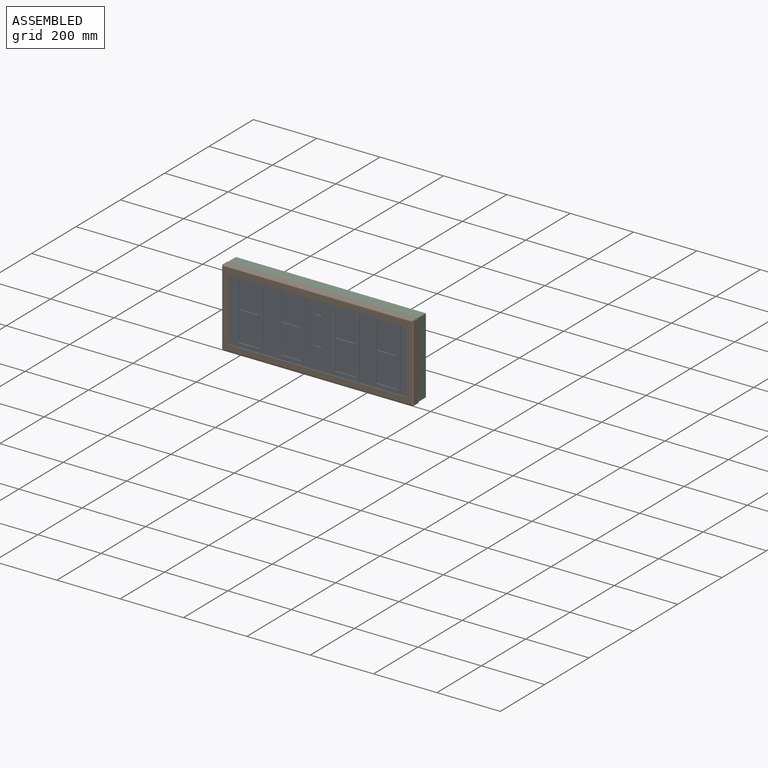
[diagram: assembled view]
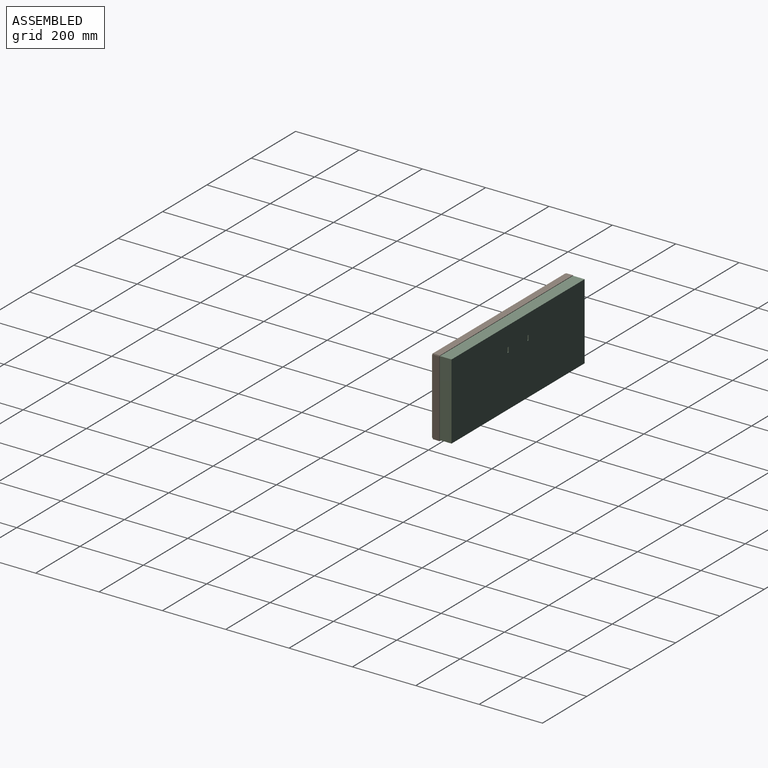
[diagram: assembled view, second angle]
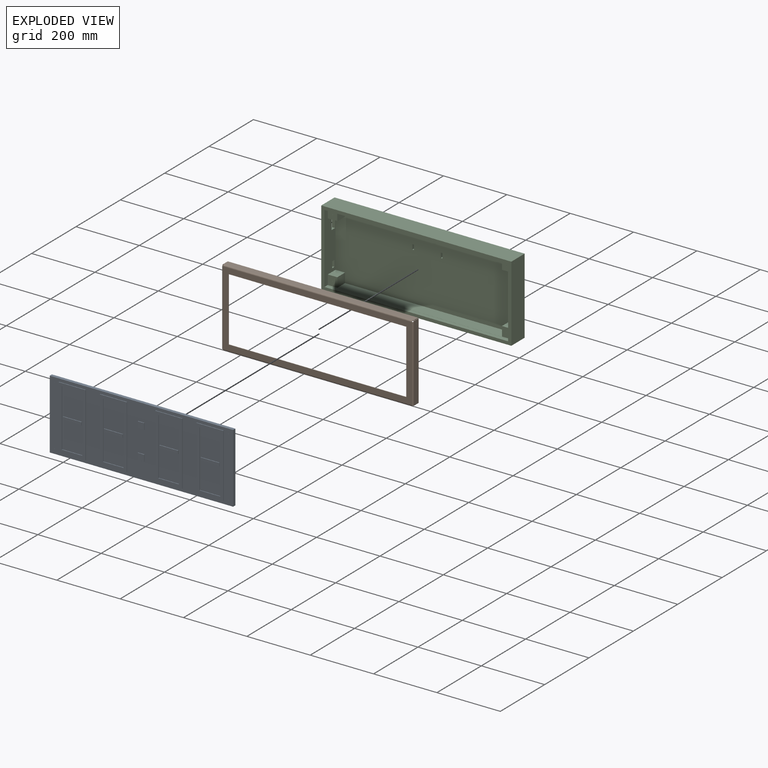
[diagram: exploded view]
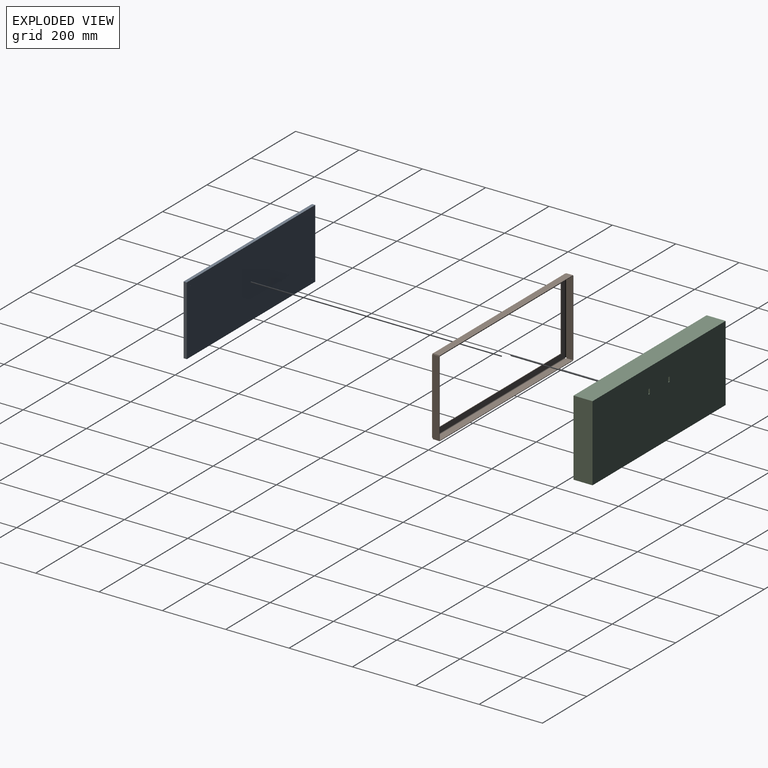
[diagram: exploded view, second angle]
ASSEMBLY  parts=3 mates=2
PART A: 80 faces, bbox 579x12x219 mm
  f0: plane 579x10mm, normal (0,0,1), area 5790mm2, adj f1,f7,f8,f9
  f1: plane 219x10mm, normal (-1,0,0), area 2190mm2, adj f0,f2,f8,f9
  f2: plane 579x10mm, normal (0,0,-1), area 5790mm2, adj f1,f7,f8,f9
  f3: cylinder r=0.5mm len=10mm, axis (0,1,0), area 31.4mm2, adj f8,f9
  f4: cylinder r=0.5mm len=10mm, axis (0,1,0), area 31.4mm2, adj f8,f9
  f5: cylinder r=0.5mm len=10mm, axis (0,1,0), area 31.4mm2, adj f8,f9
  f6: cylinder r=0.5mm len=10mm, axis (0,1,0), area 31.4mm2, adj f8,f9
  f7: plane 219x10mm, normal (1,0,0), area 2190mm2, adj f0,f2,f8,f9
  f8: plane 579x219mm, normal (0,-1,0), area 57997.9mm2, adj f0,f1,f2,f3,f4,f5,f6,f7
  f9: plane 579x219mm, normal (0,1,0), area 126797.9mm2, adj f0,f1,f2,f3,f4,f5,f6,f7
  f10: plane 85x2mm, normal (0,0,1), area 170mm2, adj f8,f11,f17,f18
  f11: plane 200x2mm, normal (-1,0,0), area 400mm2, adj f8,f10,f12,f18
  f12: plane 85x2mm, normal (0,0,-1), area 170mm2, adj f8,f11,f17,f18
  f13: plane 65x2mm, normal (0,0,-1), area 130mm2, adj f14,f16,f18,f19
  f14: plane 180x2mm, normal (-1,0,0), area 360mm2, adj f13,f15,f18,f19
  f15: plane 65x2mm, normal (0,0,1), area 130mm2, adj f14,f16,f18,f19
  f16: plane 180x2mm, normal (1,0,0), area 360mm2, adj f13,f15,f18,f19
  f17: plane 200x2mm, normal (1,0,0), area 400mm2, adj f8,f10,f12,f18
  f18: plane 200x85mm, normal (0,-1,0), area 5300mm2, adj f10,f11,f12,f13,f14,f15,f16,f17
  f19: plane 180x65mm, normal (0,-1,0), area 11110mm2, adj f13,f14,f15,f16,f20,f21,f22,f23
  f20: plane 59x2mm, normal (0,0,1), area 118mm2, adj f19,f21,f23,f24
  f21: plane 10x2mm, normal (-1,0,0), area 20mm2, adj f19,f20,f22,f24
  f22: plane 59x2mm, normal (0,0,-1), area 118mm2, adj f19,f21,f23,f24
  f23: plane 10x2mm, normal (1,0,0), area 20mm2, adj f19,f20,f22,f24
  f24: plane 59x10mm, normal (0,-1,0), area 590mm2, adj f20,f21,f22,f23
  f25: plane 85x2mm, normal (0,0,1), area 170mm2, adj f8,f26,f32,f33
  f26: plane 200x2mm, normal (-1,0,0), area 400mm2, adj f8,f25,f27,f33
  f27: plane 85x2mm, normal (0,0,-1), area 170mm2, adj f8,f26,f32,f33
  f28: plane 65x2mm, normal (0,0,-1), area 130mm2, adj f29,f31,f33,f34
  f29: plane 180x2mm, normal (-1,0,0), area 360mm2, adj f28,f30,f33,f34
  f30: plane 65x2mm, normal (0,0,1), area 130mm2, adj f29,f31,f33,f34
  f31: plane 180x2mm, normal (1,0,0), area 360mm2, adj f28,f30,f33,f34
  f32: plane 200x2mm, normal (1,0,0), area 400mm2, adj f8,f25,f27,f33
  f33: plane 200x85mm, normal (0,-1,0), area 5300mm2, adj f25,f26,f27,f28,f29,f30,f31,f32
  f34: plane 180x65mm, normal (0,-1,0), area 11110mm2, adj f28,f29,f30,f31,f35,f36,f37,f38
  f35: plane 59x2mm, normal (0,0,1), area 118mm2, adj f34,f36,f38,f39
  f36: plane 10x2mm, normal (-1,0,0), area 20mm2, adj f34,f35,f37,f39
  f37: plane 59x2mm, normal (0,0,-1), area 118mm2, adj f34,f36,f38,f39
  f38: plane 10x2mm, normal (1,0,0), area 20mm2, adj f34,f35,f37,f39
  f39: plane 59x10mm, normal (0,-1,0), area 590mm2, adj f35,f36,f37,f38
  f40: plane 85x2mm, normal (0,0,1), area 170mm2, adj f8,f41,f47,f48
  f41: plane 200x2mm, normal (-1,0,0), area 400mm2, adj f8,f40,f42,f48
  f42: plane 85x2mm, normal (0,0,-1), area 170mm2, adj f8,f41,f47,f48
  f43: plane 65x2mm, normal (0,0,-1), area 130mm2, adj f44,f46,f48,f49
  f44: plane 180x2mm, normal (-1,0,0), area 360mm2, adj f43,f45,f48,f49
  f45: plane 65x2mm, normal (0,0,1), area 130mm2, adj f44,f46,f48,f49
  f46: plane 180x2mm, normal (1,0,0), area 360mm2, adj f43,f45,f48,f49
  f47: plane 200x2mm, normal (1,0,0), area 400mm2, adj f8,f40,f42,f48
  f48: plane 200x85mm, normal (0,-1,0), area 5300mm2, adj f40,f41,f42,f43,f44,f45,f46,f47
  f49: plane 180x65mm, normal (0,-1,0), area 11110mm2, adj f43,f44,f45,f46,f50,f51,f52,f53
  f50: plane 59x2mm, normal (0,0,1), area 118mm2, adj f49,f51,f53,f54
  f51: plane 10x2mm, normal (-1,0,0), area 20mm2, adj f49,f50,f52,f54
  f52: plane 59x2mm, normal (0,0,-1), area 118mm2, adj f49,f51,f53,f54
  f53: plane 10x2mm, normal (1,0,0), area 20mm2, adj f49,f50,f52,f54
  f54: plane 59x10mm, normal (0,-1,0), area 590mm2, adj f50,f51,f52,f53
  f55: plane 85x2mm, normal (0,0,1), area 170mm2, adj f8,f56,f62,f63
  f56: plane 200x2mm, normal (-1,0,0), area 400mm2, adj f8,f55,f57,f63
  f57: plane 85x2mm, normal (0,0,-1), area 170mm2, adj f8,f56,f62,f63
  f58: plane 65x2mm, normal (0,0,-1), area 130mm2, adj f59,f61,f63,f64
  f59: plane 180x2mm, normal (-1,0,0), area 360mm2, adj f58,f60,f63,f64
  f60: plane 65x2mm, normal (0,0,1), area 130mm2, adj f59,f61,f63,f64
  f61: plane 180x2mm, normal (1,0,0), area 360mm2, adj f58,f60,f63,f64
  f62: plane 200x2mm, normal (1,0,0), area 400mm2, adj f8,f55,f57,f63
  f63: plane 200x85mm, normal (0,-1,0), area 5300mm2, adj f55,f56,f57,f58,f59,f60,f61,f62
  f64: plane 180x65mm, normal (0,-1,0), area 11110mm2, adj f58,f59,f60,f61,f65,f66,f67,f68
  f65: plane 59x2mm, normal (0,0,1), area 118mm2, adj f64,f66,f68,f69
  f66: plane 10x2mm, normal (-1,0,0), area 20mm2, adj f64,f65,f67,f69
  f67: plane 59x2mm, normal (0,0,-1), area 118mm2, adj f64,f66,f68,f69
  f68: plane 10x2mm, normal (1,0,0), area 20mm2, adj f64,f65,f67,f69
  f69: plane 59x10mm, normal (0,-1,0), area 590mm2, adj f65,f66,f67,f68
  f70: plane 20x2mm, normal (0,0,-1), area 40mm2, adj f8,f71,f73,f74
  f71: plane 20x2mm, normal (1,0,0), area 40mm2, adj f8,f70,f72,f74
  f72: plane 20x2mm, normal (0,0,1), area 40mm2, adj f8,f71,f73,f74
  f73: plane 20x2mm, normal (-1,0,0), area 40mm2, adj f8,f70,f72,f74
  f74: plane 20x20mm, normal (0,-1,0), area 400mm2, adj f70,f71,f72,f73
  f75: plane 20x2mm, normal (0,0,1), area 40mm2, adj f8,f76,f78,f79
  f76: plane 20x2mm, normal (-1,0,0), area 40mm2, adj f8,f75,f77,f79
  f77: plane 20x2mm, normal (0,0,-1), area 40mm2, adj f8,f76,f78,f79
  f78: plane 20x2mm, normal (1,0,0), area 40mm2, adj f8,f75,f77,f79
  f79: plane 20x20mm, normal (0,-1,0), area 400mm2, adj f75,f76,f77,f78
PART B: 54 faces, bbox 604.2x25x244.2 mm
  f0: plane 201x1.6mm, normal (-1,0,0), area 321.6mm2, adj f1,f3,f4,f5
  f1: plane 561x1.6mm, normal (0,0,-1), area 897.6mm2, adj f0,f2,f4,f5
  f2: plane 201x1.6mm, normal (1,0,0), area 321.6mm2, adj f1,f3,f4,f5
  f3: plane 561x1.6mm, normal (0,0,1), area 897.6mm2, adj f0,f2,f4,f5
  f4: plane 596.4x236.4mm, normal (0,1,0), area 28228mm2, adj f0,f1,f2,f3,f15,f28,f39,f52
  f5: plane 596.4x236.4mm, normal (0,-1,0), area 28228mm2, adj f0,f1,f2,f3,f16,f29,f40,f53
  f6: plane 2.28x1.6mm, normal (0,1,0), area 3.6mm2, adj f8,f11,f12,f13
  f7: plane 600.96x1.6mm, normal (0,-1,0), area 961.5mm2, adj f8,f10,f11,f12
  f8: plane 21.1x1.6mm, normal (1,0,0), area 33.8mm2, adj f6,f7,f11,f12
  f9: plane 2.28x1.6mm, normal (0,1,0), area 3.6mm2, adj f10,f11,f12,f14
  f10: plane 21.1x1.6mm, normal (-1,0,0), area 33.8mm2, adj f7,f9,f11,f12
  f11: plane 600.96x21.1mm, normal (0,0,1), area 12680.3mm2, adj f6,f7,f8,f9,f10,f15
  f12: plane 600.96x21.1mm, normal (0,0,-1), area 12680.3mm2, adj f6,f7,f8,f9,f10,f16
  f13: plane 3.9x3.9mm, normal (1,0,0), area 7.8mm2, adj f6,f15,f16,f27
  f14: plane 3.9x3.9mm, normal (-1,0,0), area 7.8mm2, adj f9,f15,f16,f51
  f15: cylinder r=3.9mm len=596.4mm, axis (1,0,0), area 3653.6mm2, adj f4,f11,f13,f14
  f16: cylinder r=2.3mm len=596.4mm, axis (1,0,0), area 2154.7mm2, adj f5,f12,f13,f14
  f17: plane 2.28x1.6mm, normal (0,1,0), area 3.6mm2, adj f19,f24,f25,f26
  f18: plane 240.96x1.6mm, normal (0,-1,0), area 385.5mm2, adj f19,f23,f24,f25
  f19: plane 21.1x1.6mm, normal (0,0,-1), area 33.8mm2, adj f17,f18,f24,f25
  f20: plane 2.28x1.6mm, normal (0,1,0), area 3.6mm2, adj f23,f24,f25,f27
  f21: cylinder r=0.5mm len=1.6mm, axis (1,0,0), area 5mm2, adj f24,f25
  f22: cylinder r=0.5mm len=1.6mm, axis (1,0,0), area 5mm2, adj f24,f25
  f23: plane 21.1x1.6mm, normal (0,0,1), area 33.8mm2, adj f18,f20,f24,f25
  f24: plane 240.96x21.1mm, normal (1,0,0), area 5082.7mm2, adj f17,f18,f19,f20,f21,f22,f23,f28
  f25: plane 240.96x21.1mm, normal (-1,0,0), area 5082.7mm2, adj f17,f18,f19,f20,f21,f22,f23,f29
  f26: plane 3.9x3.9mm, normal (0,0,-1), area 7.8mm2, adj f17,f28,f29,f38
  f27: plane 3.9x3.9mm, normal (0,0,1), area 7.8mm2, adj f13,f20,f28,f29
  f28: cylinder r=3.9mm len=236.4mm, axis (0,0,-1), area 1448.2mm2, adj f4,f24,f26,f27
  f29: cylinder r=2.3mm len=236.4mm, axis (0,0,-1), area 854.1mm2, adj f5,f25,f26,f27
  f30: plane 2.28x1.6mm, normal (0,1,0), area 3.6mm2, adj f32,f35,f36,f37
  f31: plane 600.96x1.6mm, normal (0,-1,0), area 961.5mm2, adj f32,f34,f35,f36
  f32: plane 21.1x1.6mm, normal (-1,0,0), area 33.8mm2, adj f30,f31,f35,f36
  f33: plane 2.28x1.6mm, normal (0,1,0), area 3.6mm2, adj f34,f35,f36,f38
  f34: plane 21.1x1.6mm, normal (1,0,0), area 33.8mm2, adj f31,f33,f35,f36
  f35: plane 600.96x21.1mm, normal (0,0,-1), area 12680.3mm2, adj f30,f31,f32,f33,f34,f39
  f36: plane 600.96x21.1mm, normal (0,0,1), area 12680.3mm2, adj f30,f31,f32,f33,f34,f40
  f37: plane 3.9x3.9mm, normal (-1,0,0), area 7.8mm2, adj f30,f39,f40,f50
  f38: plane 3.9x3.9mm, normal (1,0,0), area 7.8mm2, adj f26,f33,f39,f40
  f39: cylinder r=3.9mm len=596.4mm, axis (-1,0,0), area 3653.6mm2, adj f4,f35,f37,f38
  f40: cylinder r=2.3mm len=596.4mm, axis (-1,0,0), area 2154.7mm2, adj f5,f36,f37,f38
  f41: plane 2.28x1.6mm, normal (0,1,0), area 3.6mm2, adj f43,f48,f49,f51
  f42: plane 240.96x1.6mm, normal (0,-1,0), area 385.5mm2, adj f43,f47,f48,f49
  f43: plane 21.1x1.6mm, normal (0,0,1), area 33.8mm2, adj f41,f42,f48,f49
  f44: plane 2.28x1.6mm, normal (0,1,0), area 3.6mm2, adj f47,f48,f49,f50
  f45: cylinder r=0.5mm len=1.6mm, axis (-1,0,0), area 5mm2, adj f48,f49
  f46: cylinder r=0.5mm len=1.6mm, axis (-1,0,0), area 5mm2, adj f48,f49
  f47: plane 21.1x1.6mm, normal (0,0,-1), area 33.8mm2, adj f42,f44,f48,f49
  f48: plane 240.96x21.1mm, normal (-1,0,0), area 5082.7mm2, adj f41,f42,f43,f44,f45,f46,f47,f52
  f49: plane 240.96x21.1mm, normal (1,0,0), area 5082.7mm2, adj f41,f42,f43,f44,f45,f46,f47,f53
  f50: plane 3.9x3.9mm, normal (0,0,-1), area 7.8mm2, adj f37,f44,f52,f53
  f51: plane 3.9x3.9mm, normal (0,0,1), area 7.8mm2, adj f14,f41,f52,f53
  f52: cylinder r=3.9mm len=236.4mm, axis (0,0,-1), area 1448.2mm2, adj f4,f48,f50,f51
  f53: cylinder r=2.3mm len=236.4mm, axis (0,0,-1), area 854.1mm2, adj f5,f49,f50,f51
PART C: 50 faces, bbox 600x60x240 mm
  f0: plane 580x36.65mm, normal (0,0,-1), area 19157mm2, adj f3,f4,f6,f26,f29,f38,f39,f49
  f1: plane 580x36.65mm, normal (0,0,1), area 19157mm2, adj f3,f4,f6,f22,f24,f31,f34,f48
  f2: plane 240x60mm, normal (-1,0,0), area 13598.4mm2, adj f7,f8,f18,f20,f36,f41,f42,f43
  f3: plane 220x50mm, normal (1,0,0), area 8099.2mm2, adj f0,f1,f4,f5,f19,f20,f33,f34
  f4: plane 580x220mm, normal (0,-1,0), area 123829.2mm2, adj f0,f1,f3,f6,f9,f10,f11,f12
  f5: plane 580x12.35mm, normal (0,0,-1), area 7163mm2, adj f3,f6,f20,f49
  f6: plane 220x50mm, normal (-1,0,0), area 8899.2mm2, adj f0,f1,f4,f5,f19,f20,f21,f24
  f7: plane 600x60mm, normal (0,0,1), area 36000mm2, adj f2,f17,f18,f20
  f8: plane 600x60mm, normal (0,0,-1), area 36000mm2, adj f2,f17,f18,f20
  f9: plane 10x5.57mm, normal (0,0,1), area 55.7mm2, adj f4,f10,f15,f18
  f10: plane 15x10mm, normal (1,0,0), area 150mm2, adj f4,f9,f11,f18
  f11: cylinder r=8mm len=10mm, axis (0,1,0), area 56.9mm2, adj f4,f10,f15,f18
  f12: plane 10x5.57mm, normal (0,0,1), area 55.7mm2, adj f4,f13,f16,f18
  f13: plane 15x10mm, normal (1,0,0), area 150mm2, adj f4,f12,f14,f18
  f14: cylinder r=8mm len=10mm, axis (0,1,0), area 56.9mm2, adj f4,f13,f16,f18
  f15: plane 15x10mm, normal (-1,0,0), area 150mm2, adj f4,f9,f11,f18
  f16: plane 15x10mm, normal (-1,0,0), area 150mm2, adj f4,f12,f14,f18
  f17: plane 240x60mm, normal (1,0,0), area 14398.4mm2, adj f7,f8,f18,f20,f48,f49
  f18: plane 600x240mm, normal (0,1,0), area 143829.2mm2, adj f2,f7,f8,f9,f10,f11,f12,f13
  f19: plane 580x12.35mm, normal (0,0,1), area 7163mm2, adj f3,f6,f20,f48
  f20: plane 600x240mm, normal (0,-1,0), area 16400mm2, adj f2,f3,f5,f6,f7,f8,f17,f19
  f21: plane 35x30mm, normal (0,0,1), area 1050mm2, adj f4,f6,f22,f24
  f22: plane 35x30mm, normal (-1,0,0), area 1050mm2, adj f1,f4,f21,f24
  f23: cylinder r=0.5mm len=35mm, axis (0,1,0), area 110mm2, adj f24,f25
  f24: plane 30x30mm, normal (0,-1,0), area 899.2mm2, adj f1,f6,f21,f22,f23
  f25: plane 1x1mm, normal (0,-1,0), area 0.8mm2, adj f23
  f26: plane 35x30mm, normal (-1,0,0), area 1050mm2, adj f0,f4,f27,f29
  f27: plane 35x30mm, normal (0,0,-1), area 1050mm2, adj f4,f6,f26,f29
  f28: cylinder r=0.5mm len=35mm, axis (0,1,0), area 110mm2, adj f29,f30
  f29: plane 30x30mm, normal (0,-1,0), area 899.2mm2, adj f0,f6,f26,f27,f28
  f30: plane 1x1mm, normal (0,-1,0), area 0.8mm2, adj f28
  f31: plane 35x30mm, normal (1,0,0), area 1050mm2, adj f1,f4,f33,f34
  f32: cylinder r=0.5mm len=35mm, axis (0,1,0), area 110mm2, adj f34,f35
  f33: plane 35x30mm, normal (0,0,1), area 1050mm2, adj f3,f4,f31,f34
  f34: plane 30x30mm, normal (0,-1,0), area 899.2mm2, adj f1,f3,f31,f32,f33
  f35: plane 1x1mm, normal (0,-1,0), area 0.8mm2, adj f32
  f36: plane 40x35mm, normal (0,0,-1), area 1200mm2, adj f2,f3,f4,f38,f39,f45,f47
  f37: cylinder r=0.5mm len=35mm, axis (0,1,0), area 110mm2, adj f39,f40
  f38: plane 35x30mm, normal (1,0,0), area 1050mm2, adj f0,f4,f36,f39
  f39: plane 30x30mm, normal (0,-1,0), area 899.2mm2, adj f0,f3,f36,f37,f38
  f40: plane 1x1mm, normal (0,-1,0), area 0.8mm2, adj f37
  f41: plane 20x10mm, normal (0,1,0), area 200mm2, adj f2,f3,f42,f44
  f42: plane 10x10mm, normal (0,0,-1), area 100mm2, adj f2,f3,f41,f43
  f43: plane 20x10mm, normal (0,-1,0), area 200mm2, adj f2,f3,f42,f44
  f44: plane 10x10mm, normal (0,0,1), area 100mm2, adj f2,f3,f41,f43
  f45: plane 40x10mm, normal (0,-1,0), area 400mm2, adj f2,f3,f36,f46
  f46: plane 15x10mm, normal (0,0,1), area 150mm2, adj f2,f3,f45,f47
  f47: plane 40x10mm, normal (0,1,0), area 400mm2, adj f2,f3,f36,f46
  f48: cylinder r=0.5mm len=600mm, axis (-1,0,0), area 973.9mm2, adj f1,f2,f3,f6,f17,f19
  f49: cylinder r=0.5mm len=600mm, axis (-1,0,0), area 973.9mm2, adj f0,f2,f3,f5,f6,f17
PLACE A t=(55.15,-3.22,8.75)mm
PLACE B rot(axis=(0,0,-1),180deg) t=(56.15,-19.82,7.77)mm
PLACE C t=(55.65,41.78,8.25)mm
MATE fastened C.f49 <-> B.f45  axis (-1,0,0) through (-244.35,-5.37,118.25)mm
MATE fastened C.f37 <-> A.f3  axis (0,-1,0) through (-219.35,-3.22,103.25)mm
